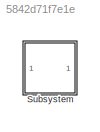
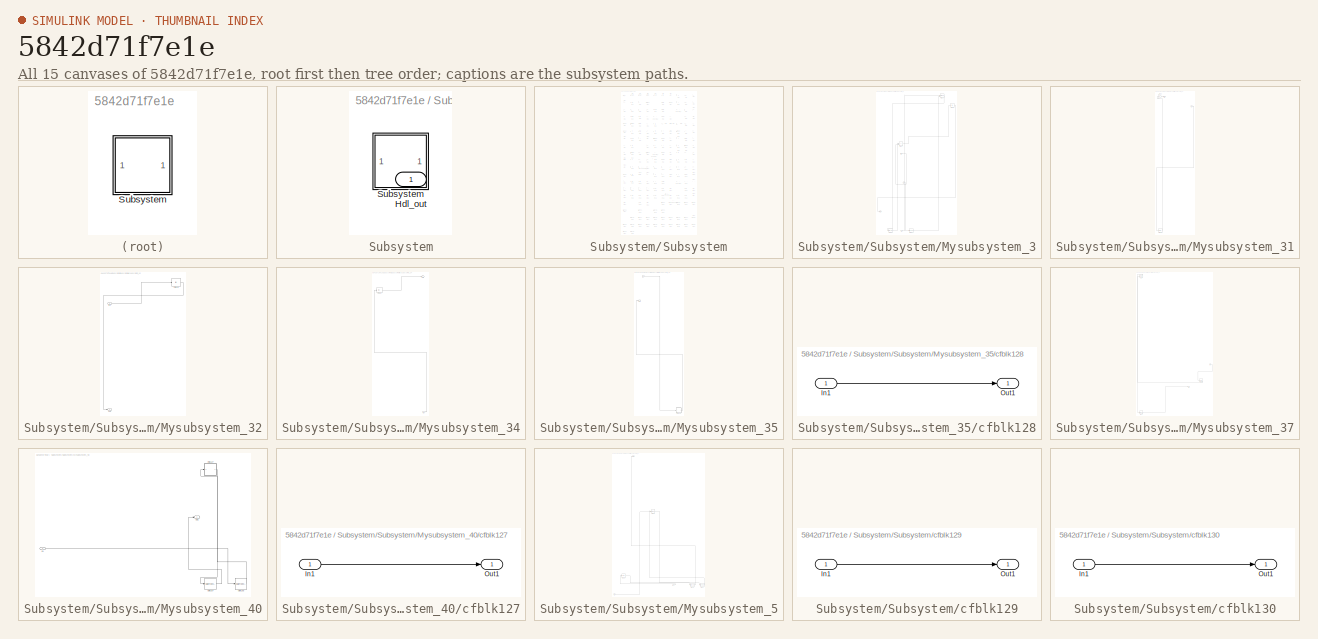
[diagram: thumbnail index - all 15 canvases of the model, root first then tree order]
MODEL slx_5842d71f7e1e
KIND model
CONFIG AbsTol = auto
CONFIG EnableMultiTasking = off
CONFIG FixedStep = auto
CONFIG MaxStep = auto
CONFIG MinStep = auto
CONFIG RelTol = 1e-3
CONFIG SampleTimeConstraint = Unconstrained
CONFIG SolverName = VariableStepAuto
CONFIG StartTime = 0.0
CONFIG StopTime = 10.0
BLOCK [SubSystem] Subsystem
BLOCK [Outport] Subsystem/Hdl_out
  OutDataTypeStr = uint8
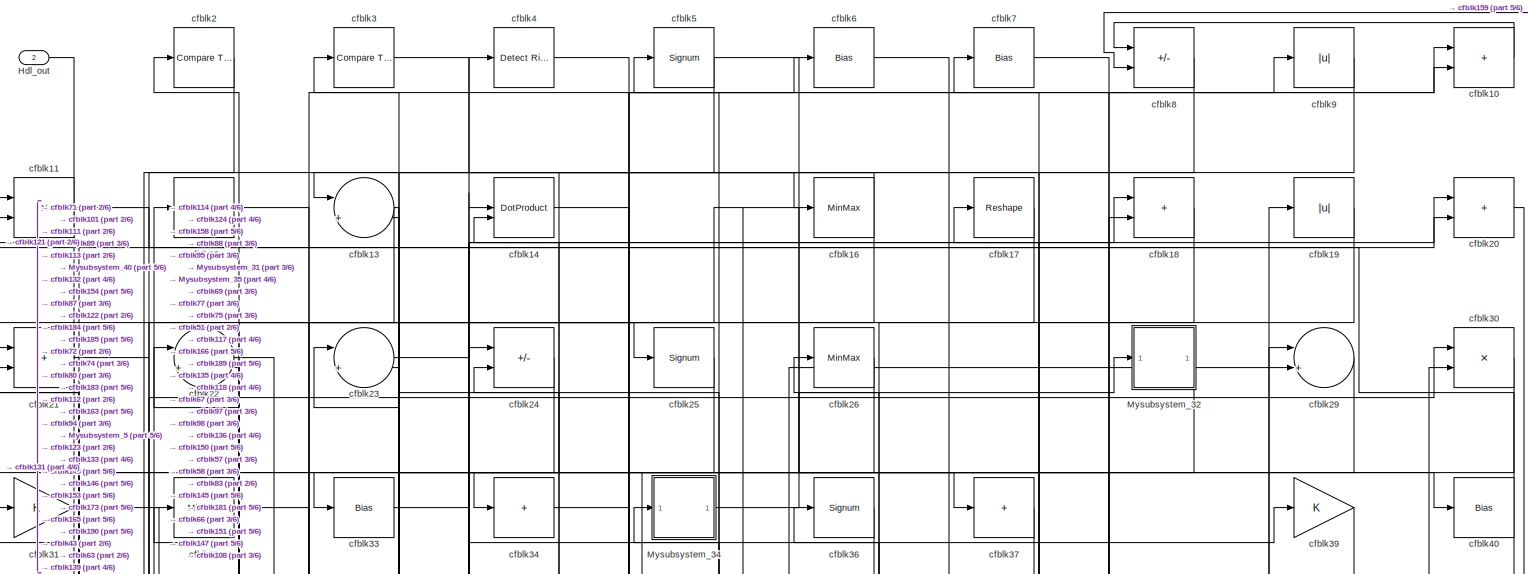
[diagram: Subsystem/Subsystem - part 1/6, full width, top band]
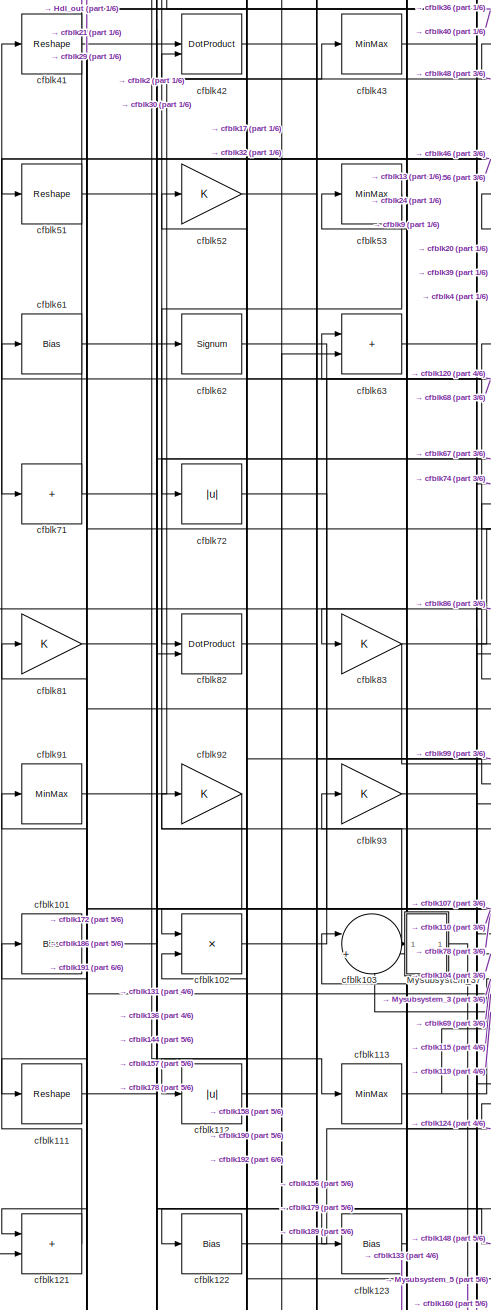
[diagram: Subsystem/Subsystem - part 2/6, middle left region]
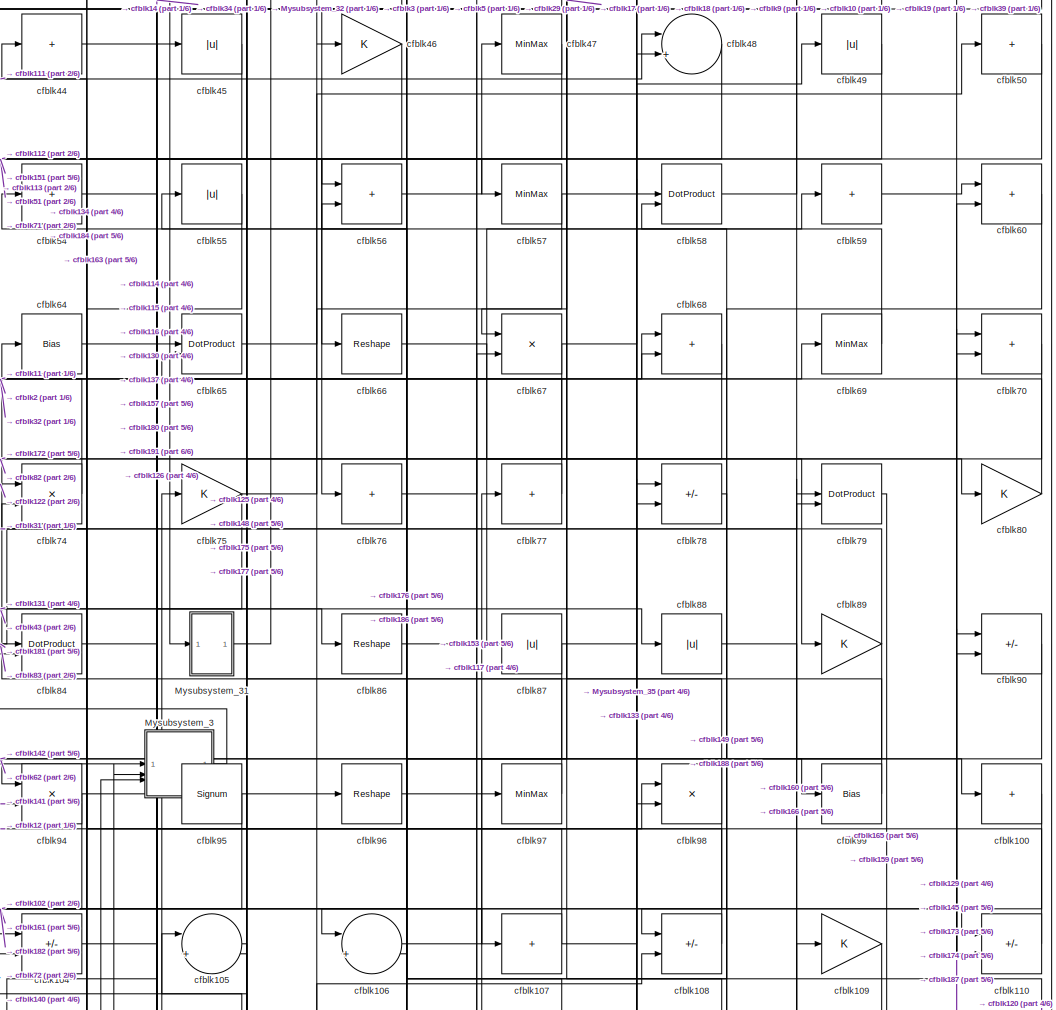
[diagram: Subsystem/Subsystem - part 3/6, central region]
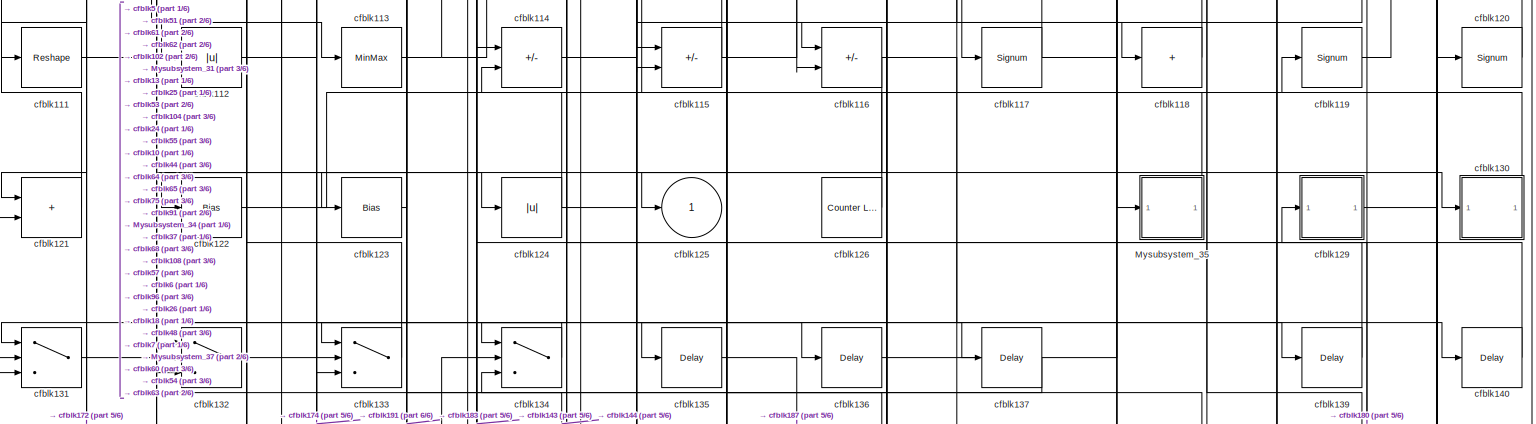
[diagram: Subsystem/Subsystem - part 4/6, full width, middle band]
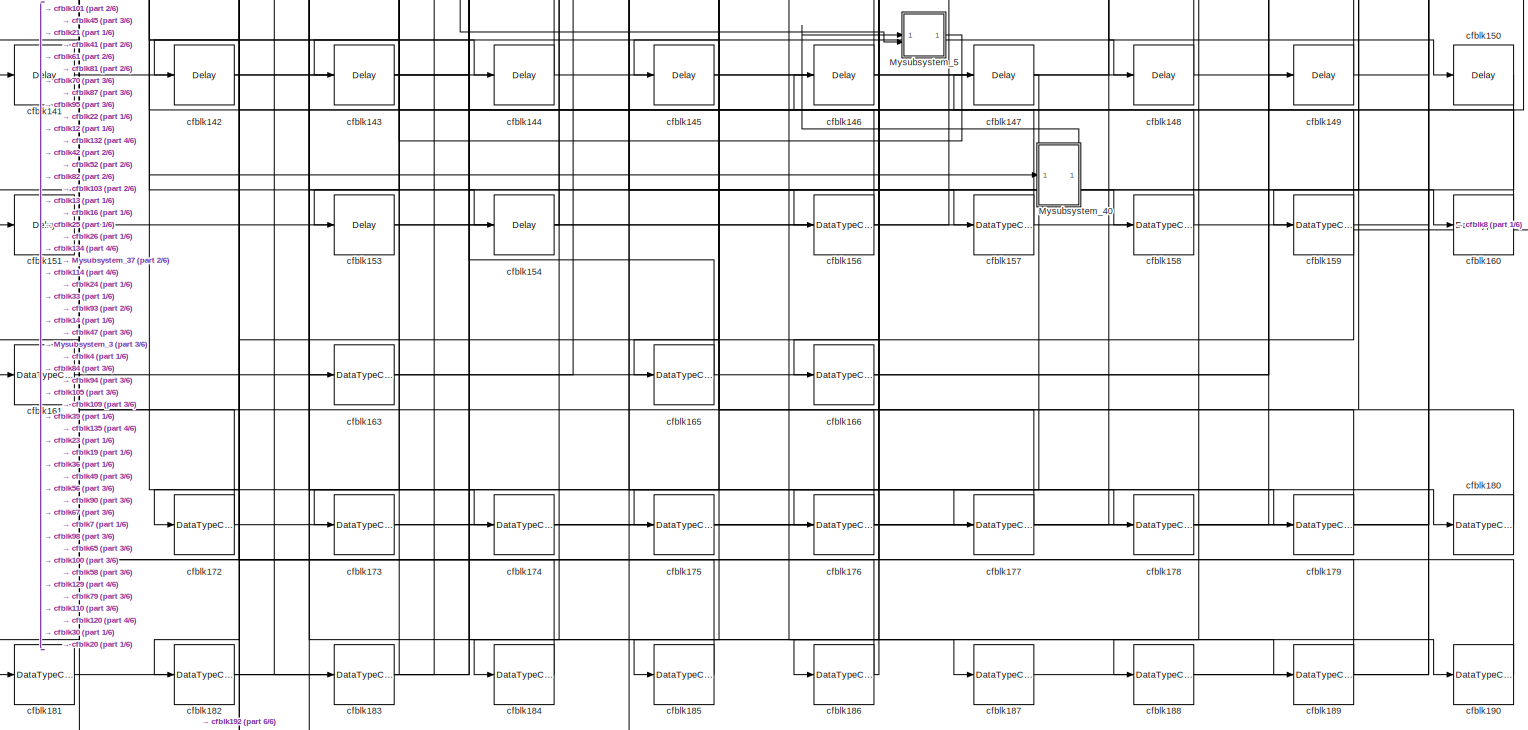
[diagram: Subsystem/Subsystem - part 5/6, full width, bottom band]
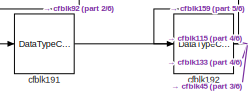
[diagram: Subsystem/Subsystem - part 6/6, bottom left region]
BLOCK [SubSystem] Subsystem/Subsystem
BLOCK [Outport] Subsystem/Subsystem/Hdl_out
  OutDataTypeStr = uint8
  Port = 2
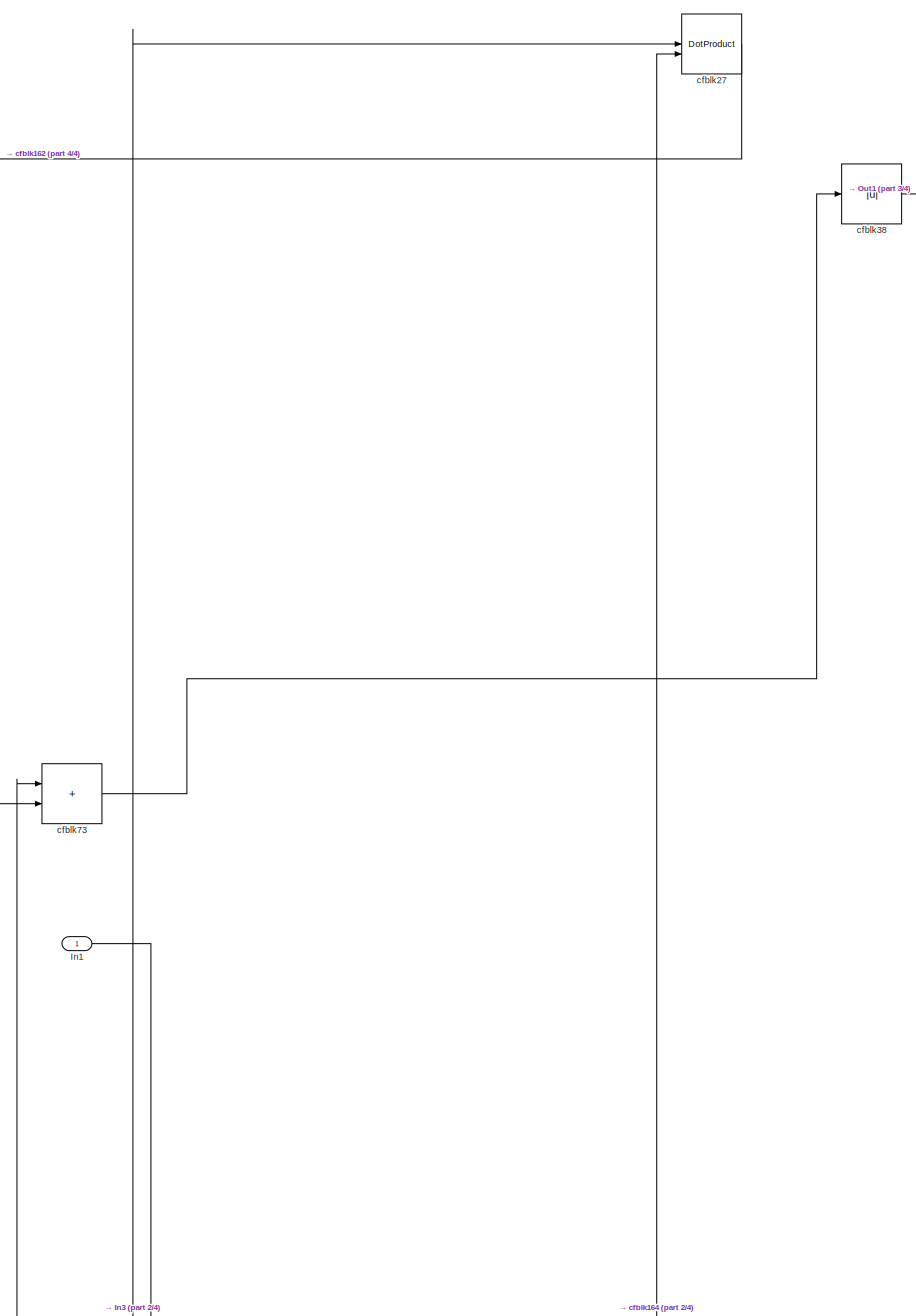
[diagram: Subsystem/Subsystem/Mysubsystem_3 - part 1/4, full width, top band]
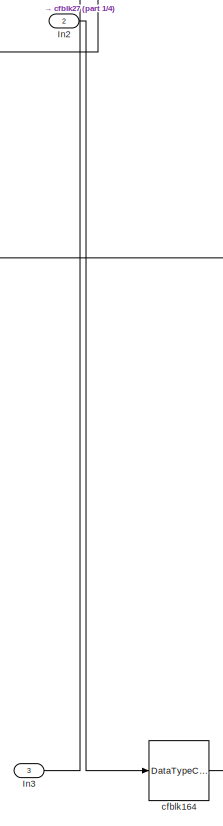
[diagram: Subsystem/Subsystem/Mysubsystem_3 - part 2/4, bottom center region]
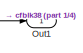
[diagram: Subsystem/Subsystem/Mysubsystem_3 - part 3/4, bottom left region]
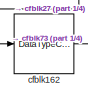
[diagram: Subsystem/Subsystem/Mysubsystem_3 - part 4/4, bottom left region]
BLOCK [SubSystem] Subsystem/Subsystem/Mysubsystem_3
  RTWFcnName = Mysubsystem_3
  RTWFcnNameOpts = User specified
  RTWFileNameOpts = Use function name
  RTWSystemCode = Reusable function
  TreatAsAtomicUnit = on
BLOCK [Inport] Subsystem/Subsystem/Mysubsystem_3/In1
BLOCK [Inport] Subsystem/Subsystem/Mysubsystem_3/In2
  Port = 2
BLOCK [Inport] Subsystem/Subsystem/Mysubsystem_3/In3
  Port = 3
BLOCK [Outport] Subsystem/Subsystem/Mysubsystem_3/Out1
BLOCK [DataTypeConversion] Subsystem/Subsystem/Mysubsystem_3/cfblk162
  OutDataTypeStr = uint8
  RndMeth = Floor
  SaturateOnIntegerOverflow = off
BLOCK [DataTypeConversion] Subsystem/Subsystem/Mysubsystem_3/cfblk164
  OutDataTypeStr = uint8
  RndMeth = Floor
  SaturateOnIntegerOverflow = off
BLOCK [DotProduct] Subsystem/Subsystem/Mysubsystem_3/cfblk27
  OutDataTypeStr = Inherit: Inherit via internal rule
BLOCK [Abs] Subsystem/Subsystem/Mysubsystem_3/cfblk38
  SaturateOnIntegerOverflow = off
BLOCK [Sum] Subsystem/Subsystem/Mysubsystem_3/cfblk73
  IconShape = rectangular
BLOCK [SubSystem] Subsystem/Subsystem/Mysubsystem_31
  RTWFcnName = Mysubsystem_31
  RTWFcnNameOpts = User specified
  RTWFileNameOpts = Use function name
  RTWSystemCode = Reusable function
  TreatAsAtomicUnit = on
BLOCK [Inport] Subsystem/Subsystem/Mysubsystem_31/In1
BLOCK [Outport] Subsystem/Subsystem/Mysubsystem_31/Out1
BLOCK [Gain] Subsystem/Subsystem/Mysubsystem_31/cfblk15
BLOCK [Delay] Subsystem/Subsystem/Mysubsystem_31/cfblk155
  InputPortMap = u0
  SampleTime = 1
BLOCK [SubSystem] Subsystem/Subsystem/Mysubsystem_32
  RTWFcnName = Mysubsystem_32
  RTWFcnNameOpts = User specified
  RTWFileNameOpts = Use function name
  RTWSystemCode = Reusable function
  TreatAsAtomicUnit = on
BLOCK [Inport] Subsystem/Subsystem/Mysubsystem_32/In1
BLOCK [Outport] Subsystem/Subsystem/Mysubsystem_32/Out1
BLOCK [Abs] Subsystem/Subsystem/Mysubsystem_32/cfblk28
  SaturateOnIntegerOverflow = off
BLOCK [SubSystem] Subsystem/Subsystem/Mysubsystem_34
  RTWFcnName = Mysubsystem_34
  RTWFcnNameOpts = User specified
  RTWFileNameOpts = Use function name
  RTWSystemCode = Reusable function
  TreatAsAtomicUnit = on
BLOCK [Inport] Subsystem/Subsystem/Mysubsystem_34/In1
BLOCK [Outport] Subsystem/Subsystem/Mysubsystem_34/Out1
BLOCK [Abs] Subsystem/Subsystem/Mysubsystem_34/cfblk35
  SaturateOnIntegerOverflow = off
BLOCK [SubSystem] Subsystem/Subsystem/Mysubsystem_35
  RTWFcnName = Mysubsystem_35
  RTWFcnNameOpts = User specified
  RTWFileNameOpts = Use function name
  RTWSystemCode = Reusable function
  TreatAsAtomicUnit = on
BLOCK [Inport] Subsystem/Subsystem/Mysubsystem_35/In1
BLOCK [Outport] Subsystem/Subsystem/Mysubsystem_35/Out1
BLOCK [SubSystem] Subsystem/Subsystem/Mysubsystem_35/cfblk128
  LibrarySourceBlock = hdlsllib/Ports &\nSubsystems/Subsystem
BLOCK [Inport] Subsystem/Subsystem/Mysubsystem_35/cfblk128/In1
BLOCK [Outport] Subsystem/Subsystem/Mysubsystem_35/cfblk128/Out1
BLOCK [SubSystem] Subsystem/Subsystem/Mysubsystem_37
  RTWFcnName = Mysubsystem_37
  RTWFcnNameOpts = User specified
  RTWFileNameOpts = Use function name
  RTWSystemCode = Reusable function
  TreatAsAtomicUnit = on
BLOCK [Inport] Subsystem/Subsystem/Mysubsystem_37/In1
BLOCK [Outport] Subsystem/Subsystem/Mysubsystem_37/Out1
BLOCK [Reference] Subsystem/Subsystem/Mysubsystem_37/cfblk1  REF=hdlsllib/Logic and Bit
Operations/Compare
To Zero
  SourceBlock = hdlsllib/Logic and Bit\nOperations/Compare\nTo Zero
  SourceType = Compare To Zero
BLOCK [Delay] Subsystem/Subsystem/Mysubsystem_37/cfblk138
  InputPortMap = u0
  SampleTime = 1
BLOCK [DataTypeConversion] Subsystem/Subsystem/Mysubsystem_37/cfblk171
  OutDataTypeStr = uint8
  RndMeth = Floor
  SaturateOnIntegerOverflow = off
BLOCK [SubSystem] Subsystem/Subsystem/Mysubsystem_40
  RTWFcnName = Mysubsystem_40
  RTWFcnNameOpts = User specified
  RTWFileNameOpts = Use function name
  RTWSystemCode = Reusable function
  TreatAsAtomicUnit = on
BLOCK [Inport] Subsystem/Subsystem/Mysubsystem_40/In1
BLOCK [Outport] Subsystem/Subsystem/Mysubsystem_40/Out1
BLOCK [SubSystem] Subsystem/Subsystem/Mysubsystem_40/cfblk127
  LibrarySourceBlock = hdlsllib/Ports &\nSubsystems/Subsystem
BLOCK [Inport] Subsystem/Subsystem/Mysubsystem_40/cfblk127/In1
BLOCK [Outport] Subsystem/Subsystem/Mysubsystem_40/cfblk127/Out1
BLOCK [DataTypeConversion] Subsystem/Subsystem/Mysubsystem_40/cfblk167
  OutDataTypeStr = uint8
  RndMeth = Floor
  SaturateOnIntegerOverflow = off
BLOCK [DataTypeConversion] Subsystem/Subsystem/Mysubsystem_40/cfblk168
  OutDataTypeStr = uint8
  RndMeth = Floor
  SaturateOnIntegerOverflow = off
BLOCK [SubSystem] Subsystem/Subsystem/Mysubsystem_5
  RTWFcnName = Mysubsystem_5
  RTWFcnNameOpts = User specified
  RTWFileNameOpts = Use function name
  RTWSystemCode = Reusable function
  TreatAsAtomicUnit = on
BLOCK [Inport] Subsystem/Subsystem/Mysubsystem_5/In1
BLOCK [Inport] Subsystem/Subsystem/Mysubsystem_5/In2
  Port = 2
BLOCK [Outport] Subsystem/Subsystem/Mysubsystem_5/Out1
BLOCK [Delay] Subsystem/Subsystem/Mysubsystem_5/cfblk152
  InputPortMap = u0
  SampleTime = 1
BLOCK [DataTypeConversion] Subsystem/Subsystem/Mysubsystem_5/cfblk169
  OutDataTypeStr = uint8
  RndMeth = Floor
  SaturateOnIntegerOverflow = off
BLOCK [DataTypeConversion] Subsystem/Subsystem/Mysubsystem_5/cfblk170
  OutDataTypeStr = uint8
  RndMeth = Floor
  SaturateOnIntegerOverflow = off
BLOCK [DotProduct] Subsystem/Subsystem/Mysubsystem_5/cfblk85
  OutDataTypeStr = Inherit: Inherit via internal rule
BLOCK [Sum] Subsystem/Subsystem/cfblk10
  IconShape = rectangular
  OutDataTypeStr = uint8
BLOCK [Sum] Subsystem/Subsystem/cfblk100
  IconShape = rectangular
  Inputs = +
  OutDataTypeStr = uint8
BLOCK [Bias] Subsystem/Subsystem/cfblk101
  Bias = 0.0
  SaturateOnIntegerOverflow = off
BLOCK [Product] Subsystem/Subsystem/cfblk102
  Inputs = */
  OutDataTypeStr = uint8
  RndMeth = Zero
  SaturateOnIntegerOverflow = on
BLOCK [Sum] Subsystem/Subsystem/cfblk103
  Inputs = |++
  OutDataTypeStr = uint8
BLOCK [Sum] Subsystem/Subsystem/cfblk104
  IconShape = rectangular
  Inputs = +-
  OutDataTypeStr = uint8
BLOCK [Sum] Subsystem/Subsystem/cfblk105
  Inputs = |++
  OutDataTypeStr = uint8
BLOCK [Sum] Subsystem/Subsystem/cfblk106
  Inputs = |++
  OutDataTypeStr = uint8
BLOCK [Sum] Subsystem/Subsystem/cfblk107
  IconShape = rectangular
  Inputs = +
  OutDataTypeStr = uint8
BLOCK [Sum] Subsystem/Subsystem/cfblk108
  IconShape = rectangular
  Inputs = +-
  OutDataTypeStr = uint8
BLOCK [Gain] Subsystem/Subsystem/cfblk109
  OutDataTypeStr = uint8
BLOCK [Product] Subsystem/Subsystem/cfblk11
  Inputs = */
  OutDataTypeStr = uint8
  RndMeth = Zero
  SaturateOnIntegerOverflow = on
BLOCK [Sum] Subsystem/Subsystem/cfblk110
  IconShape = rectangular
  Inputs = +-
  OutDataTypeStr = uint8
BLOCK [Reshape] Subsystem/Subsystem/cfblk111
BLOCK [Abs] Subsystem/Subsystem/cfblk112
  OutDataTypeStr = uint8
  SaturateOnIntegerOverflow = off
BLOCK [MinMax] Subsystem/Subsystem/cfblk113
  OutDataTypeStr = uint8
BLOCK [Sum] Subsystem/Subsystem/cfblk114
  IconShape = rectangular
  Inputs = +-
  OutDataTypeStr = uint8
BLOCK [Sum] Subsystem/Subsystem/cfblk115
  IconShape = rectangular
  Inputs = +-
  OutDataTypeStr = uint8
BLOCK [Sum] Subsystem/Subsystem/cfblk116
  IconShape = rectangular
  Inputs = +-
  OutDataTypeStr = uint8
BLOCK [Signum] Subsystem/Subsystem/cfblk117
BLOCK [Sum] Subsystem/Subsystem/cfblk118
  IconShape = rectangular
  Inputs = +
  OutDataTypeStr = uint8
BLOCK [Signum] Subsystem/Subsystem/cfblk119
BLOCK [Bias] Subsystem/Subsystem/cfblk12
  Bias = 0.0
  SaturateOnIntegerOverflow = off
BLOCK [Signum] Subsystem/Subsystem/cfblk120
BLOCK [Sum] Subsystem/Subsystem/cfblk121
  IconShape = rectangular
  OutDataTypeStr = uint8
BLOCK [Bias] Subsystem/Subsystem/cfblk122
  Bias = 0.0
  SaturateOnIntegerOverflow = off
BLOCK [Bias] Subsystem/Subsystem/cfblk123
  Bias = 0.0
  SaturateOnIntegerOverflow = off
BLOCK [Abs] Subsystem/Subsystem/cfblk124
  OutDataTypeStr = uint8
  SaturateOnIntegerOverflow = off
BLOCK [Outport] Subsystem/Subsystem/cfblk125
  OutDataTypeStr = uint8
  VectorParamsAs1DForOutWhenUnconnected = off
BLOCK [Reference] Subsystem/Subsystem/cfblk126  REF=hdlsllib/Sources/Counter
Limited
  SourceBlock = hdlsllib/Sources/Counter\nLimited
  SourceType = Counter Limited
BLOCK [SubSystem] Subsystem/Subsystem/cfblk129
  LibrarySourceBlock = hdlsllib/Ports &\nSubsystems/Subsystem
BLOCK [Inport] Subsystem/Subsystem/cfblk129/In1
BLOCK [Outport] Subsystem/Subsystem/cfblk129/Out1
BLOCK [Sum] Subsystem/Subsystem/cfblk13
  Inputs = |++
  OutDataTypeStr = uint8
BLOCK [SubSystem] Subsystem/Subsystem/cfblk130
  LibrarySourceBlock = hdlsllib/Ports &\nSubsystems/Subsystem
BLOCK [Inport] Subsystem/Subsystem/cfblk130/In1
BLOCK [Outport] Subsystem/Subsystem/cfblk130/Out1
BLOCK [Switch] Subsystem/Subsystem/cfblk131
  InputSameDT = off
  OutDataTypeStr = uint8
  SaturateOnIntegerOverflow = off
BLOCK [Switch] Subsystem/Subsystem/cfblk132
  InputSameDT = off
  OutDataTypeStr = uint8
  SaturateOnIntegerOverflow = off
BLOCK [Switch] Subsystem/Subsystem/cfblk133
  InputSameDT = off
  OutDataTypeStr = uint8
  SaturateOnIntegerOverflow = off
BLOCK [Switch] Subsystem/Subsystem/cfblk134
  InputSameDT = off
  OutDataTypeStr = uint8
  SaturateOnIntegerOverflow = off
BLOCK [Delay] Subsystem/Subsystem/cfblk135
  InputPortMap = u0
  SampleTime = 1
BLOCK [Delay] Subsystem/Subsystem/cfblk136
  InputPortMap = u0
  SampleTime = 1
BLOCK [Delay] Subsystem/Subsystem/cfblk137
  InputPortMap = u0
  SampleTime = 1
BLOCK [Delay] Subsystem/Subsystem/cfblk139
  InputPortMap = u0
  SampleTime = 1
BLOCK [DotProduct] Subsystem/Subsystem/cfblk14
  OutDataTypeStr = uint8
BLOCK [Delay] Subsystem/Subsystem/cfblk140
  InputPortMap = u0
  SampleTime = 1
BLOCK [Delay] Subsystem/Subsystem/cfblk141
  InputPortMap = u0
  SampleTime = 1
BLOCK [Delay] Subsystem/Subsystem/cfblk142
  InputPortMap = u0
  SampleTime = 1
BLOCK [Delay] Subsystem/Subsystem/cfblk143
  InputPortMap = u0
  SampleTime = 1
BLOCK [Delay] Subsystem/Subsystem/cfblk144
  InputPortMap = u0
  SampleTime = 1
BLOCK [Delay] Subsystem/Subsystem/cfblk145
  InputPortMap = u0
  SampleTime = 1
BLOCK [Delay] Subsystem/Subsystem/cfblk146
  InputPortMap = u0
  SampleTime = 1
BLOCK [Delay] Subsystem/Subsystem/cfblk147
  InputPortMap = u0
  SampleTime = 1
BLOCK [Delay] Subsystem/Subsystem/cfblk148
  InputPortMap = u0
  SampleTime = 1
BLOCK [Delay] Subsystem/Subsystem/cfblk149
  InputPortMap = u0
  SampleTime = 1
BLOCK [Delay] Subsystem/Subsystem/cfblk150
  InputPortMap = u0
  SampleTime = 1
BLOCK [Delay] Subsystem/Subsystem/cfblk151
  InputPortMap = u0
  SampleTime = 1
BLOCK [Delay] Subsystem/Subsystem/cfblk153
  InputPortMap = u0
  SampleTime = 1
BLOCK [Delay] Subsystem/Subsystem/cfblk154
  InputPortMap = u0
  SampleTime = 1
BLOCK [DataTypeConversion] Subsystem/Subsystem/cfblk156
  OutDataTypeStr = uint8
  RndMeth = Floor
  SaturateOnIntegerOverflow = off
BLOCK [DataTypeConversion] Subsystem/Subsystem/cfblk157
  OutDataTypeStr = uint8
  RndMeth = Floor
  SaturateOnIntegerOverflow = off
BLOCK [DataTypeConversion] Subsystem/Subsystem/cfblk158
  OutDataTypeStr = uint8
  RndMeth = Floor
  SaturateOnIntegerOverflow = off
BLOCK [DataTypeConversion] Subsystem/Subsystem/cfblk159
  OutDataTypeStr = uint8
  RndMeth = Floor
  SaturateOnIntegerOverflow = off
BLOCK [MinMax] Subsystem/Subsystem/cfblk16
  OutDataTypeStr = uint8
BLOCK [DataTypeConversion] Subsystem/Subsystem/cfblk160
  OutDataTypeStr = uint8
  RndMeth = Floor
  SaturateOnIntegerOverflow = off
BLOCK [DataTypeConversion] Subsystem/Subsystem/cfblk161
  OutDataTypeStr = uint8
  RndMeth = Floor
  SaturateOnIntegerOverflow = off
BLOCK [DataTypeConversion] Subsystem/Subsystem/cfblk163
  OutDataTypeStr = uint8
  RndMeth = Floor
  SaturateOnIntegerOverflow = off
BLOCK [DataTypeConversion] Subsystem/Subsystem/cfblk165
  OutDataTypeStr = uint8
  RndMeth = Floor
  SaturateOnIntegerOverflow = off
BLOCK [DataTypeConversion] Subsystem/Subsystem/cfblk166
  OutDataTypeStr = uint8
  RndMeth = Floor
  SaturateOnIntegerOverflow = off
BLOCK [Reshape] Subsystem/Subsystem/cfblk17
BLOCK [DataTypeConversion] Subsystem/Subsystem/cfblk172
  OutDataTypeStr = uint8
  RndMeth = Floor
  SaturateOnIntegerOverflow = off
BLOCK [DataTypeConversion] Subsystem/Subsystem/cfblk173
  OutDataTypeStr = uint8
  RndMeth = Floor
  SaturateOnIntegerOverflow = off
BLOCK [DataTypeConversion] Subsystem/Subsystem/cfblk174
  OutDataTypeStr = uint8
  RndMeth = Floor
  SaturateOnIntegerOverflow = off
BLOCK [DataTypeConversion] Subsystem/Subsystem/cfblk175
  OutDataTypeStr = uint8
  RndMeth = Floor
  SaturateOnIntegerOverflow = off
BLOCK [DataTypeConversion] Subsystem/Subsystem/cfblk176
  OutDataTypeStr = uint8
  RndMeth = Floor
  SaturateOnIntegerOverflow = off
BLOCK [DataTypeConversion] Subsystem/Subsystem/cfblk177
  OutDataTypeStr = uint8
  RndMeth = Floor
  SaturateOnIntegerOverflow = off
BLOCK [DataTypeConversion] Subsystem/Subsystem/cfblk178
  OutDataTypeStr = uint8
  RndMeth = Floor
  SaturateOnIntegerOverflow = off
BLOCK [DataTypeConversion] Subsystem/Subsystem/cfblk179
  OutDataTypeStr = uint8
  RndMeth = Floor
  SaturateOnIntegerOverflow = off
BLOCK [Sum] Subsystem/Subsystem/cfblk18
  IconShape = rectangular
  OutDataTypeStr = uint8
BLOCK [DataTypeConversion] Subsystem/Subsystem/cfblk180
  OutDataTypeStr = uint8
  RndMeth = Floor
  SaturateOnIntegerOverflow = off
BLOCK [DataTypeConversion] Subsystem/Subsystem/cfblk181
  OutDataTypeStr = uint8
  RndMeth = Floor
  SaturateOnIntegerOverflow = off
BLOCK [DataTypeConversion] Subsystem/Subsystem/cfblk182
  OutDataTypeStr = uint8
  RndMeth = Floor
  SaturateOnIntegerOverflow = off
BLOCK [DataTypeConversion] Subsystem/Subsystem/cfblk183
  OutDataTypeStr = uint8
  RndMeth = Floor
  SaturateOnIntegerOverflow = off
BLOCK [DataTypeConversion] Subsystem/Subsystem/cfblk184
  OutDataTypeStr = uint8
  RndMeth = Floor
  SaturateOnIntegerOverflow = off
BLOCK [DataTypeConversion] Subsystem/Subsystem/cfblk185
  OutDataTypeStr = uint8
  RndMeth = Floor
  SaturateOnIntegerOverflow = off
BLOCK [DataTypeConversion] Subsystem/Subsystem/cfblk186
  OutDataTypeStr = uint8
  RndMeth = Floor
  SaturateOnIntegerOverflow = off
BLOCK [DataTypeConversion] Subsystem/Subsystem/cfblk187
  OutDataTypeStr = uint8
  RndMeth = Floor
  SaturateOnIntegerOverflow = off
BLOCK [DataTypeConversion] Subsystem/Subsystem/cfblk188
  OutDataTypeStr = uint8
  RndMeth = Floor
  SaturateOnIntegerOverflow = off
BLOCK [DataTypeConversion] Subsystem/Subsystem/cfblk189
  OutDataTypeStr = uint8
  RndMeth = Floor
  SaturateOnIntegerOverflow = off
BLOCK [Abs] Subsystem/Subsystem/cfblk19
  OutDataTypeStr = uint8
  SaturateOnIntegerOverflow = off
BLOCK [DataTypeConversion] Subsystem/Subsystem/cfblk190
  OutDataTypeStr = uint8
  RndMeth = Floor
  SaturateOnIntegerOverflow = off
BLOCK [DataTypeConversion] Subsystem/Subsystem/cfblk191
  OutDataTypeStr = uint8
  RndMeth = Floor
  SaturateOnIntegerOverflow = off
BLOCK [DataTypeConversion] Subsystem/Subsystem/cfblk192
  OutDataTypeStr = uint8
  RndMeth = Floor
  SaturateOnIntegerOverflow = off
BLOCK [Reference] Subsystem/Subsystem/cfblk2  REF=hdlsllib/Logic and Bit
Operations/Compare
To Zero
  SourceBlock = hdlsllib/Logic and Bit\nOperations/Compare\nTo Zero
  SourceType = Compare To Zero
BLOCK [Sum] Subsystem/Subsystem/cfblk20
  IconShape = rectangular
  OutDataTypeStr = uint8
BLOCK [Sum] Subsystem/Subsystem/cfblk21
  IconShape = rectangular
  OutDataTypeStr = uint8
BLOCK [Sum] Subsystem/Subsystem/cfblk22
  Inputs = |++
  OutDataTypeStr = uint8
BLOCK [Sum] Subsystem/Subsystem/cfblk23
  Inputs = |++
  OutDataTypeStr = uint8
BLOCK [Sum] Subsystem/Subsystem/cfblk24
  IconShape = rectangular
  Inputs = +-
  OutDataTypeStr = uint8
BLOCK [Signum] Subsystem/Subsystem/cfblk25
BLOCK [MinMax] Subsystem/Subsystem/cfblk26
  OutDataTypeStr = uint8
BLOCK [Sum] Subsystem/Subsystem/cfblk29
  Inputs = |++
  OutDataTypeStr = uint8
BLOCK [Reference] Subsystem/Subsystem/cfblk3  REF=hdlsllib/Logic and Bit
Operations/Compare
To Zero
  SourceBlock = hdlsllib/Logic and Bit\nOperations/Compare\nTo Zero
  SourceType = Compare To Zero
BLOCK [Product] Subsystem/Subsystem/cfblk30
  Inputs = */
  OutDataTypeStr = uint8
  RndMeth = Zero
  SaturateOnIntegerOverflow = on
BLOCK [Gain] Subsystem/Subsystem/cfblk31
  OutDataTypeStr = uint8
BLOCK [MinMax] Subsystem/Subsystem/cfblk32
  OutDataTypeStr = uint8
BLOCK [Bias] Subsystem/Subsystem/cfblk33
  Bias = 0.0
  SaturateOnIntegerOverflow = off
BLOCK [Sum] Subsystem/Subsystem/cfblk34
  IconShape = rectangular
  Inputs = +
  OutDataTypeStr = uint8
BLOCK [Signum] Subsystem/Subsystem/cfblk36
BLOCK [Sum] Subsystem/Subsystem/cfblk37
  IconShape = rectangular
  Inputs = +
  OutDataTypeStr = uint8
BLOCK [Gain] Subsystem/Subsystem/cfblk39
  OutDataTypeStr = uint8
BLOCK [Reference] Subsystem/Subsystem/cfblk4  REF=hdlsllib/Logic and Bit
Operations/Detect Rise
Positive
  SourceBlock = hdlsllib/Logic and Bit\nOperations/Detect Rise\nPositive
  SourceType = Detect Rise Positive
BLOCK [Bias] Subsystem/Subsystem/cfblk40
  Bias = 0.0
  SaturateOnIntegerOverflow = off
BLOCK [Reshape] Subsystem/Subsystem/cfblk41
BLOCK [DotProduct] Subsystem/Subsystem/cfblk42
  OutDataTypeStr = uint8
BLOCK [MinMax] Subsystem/Subsystem/cfblk43
  OutDataTypeStr = uint8
BLOCK [Sum] Subsystem/Subsystem/cfblk44
  IconShape = rectangular
  Inputs = +
  OutDataTypeStr = uint8
BLOCK [Abs] Subsystem/Subsystem/cfblk45
  OutDataTypeStr = uint8
  SaturateOnIntegerOverflow = off
BLOCK [Gain] Subsystem/Subsystem/cfblk46
  OutDataTypeStr = uint8
BLOCK [MinMax] Subsystem/Subsystem/cfblk47
  OutDataTypeStr = uint8
BLOCK [Sum] Subsystem/Subsystem/cfblk48
  Inputs = |++
  OutDataTypeStr = uint8
BLOCK [Abs] Subsystem/Subsystem/cfblk49
  OutDataTypeStr = uint8
  SaturateOnIntegerOverflow = off
BLOCK [Signum] Subsystem/Subsystem/cfblk5
BLOCK [Sum] Subsystem/Subsystem/cfblk50
  IconShape = rectangular
  Inputs = +
  OutDataTypeStr = uint8
BLOCK [Reshape] Subsystem/Subsystem/cfblk51
BLOCK [Gain] Subsystem/Subsystem/cfblk52
  OutDataTypeStr = uint8
BLOCK [MinMax] Subsystem/Subsystem/cfblk53
  OutDataTypeStr = uint8
BLOCK [Sum] Subsystem/Subsystem/cfblk54
  IconShape = rectangular
  Inputs = +
  OutDataTypeStr = uint8
BLOCK [Abs] Subsystem/Subsystem/cfblk55
  OutDataTypeStr = uint8
  SaturateOnIntegerOverflow = off
BLOCK [Sum] Subsystem/Subsystem/cfblk56
  IconShape = rectangular
  OutDataTypeStr = uint8
BLOCK [MinMax] Subsystem/Subsystem/cfblk57
  OutDataTypeStr = uint8
BLOCK [DotProduct] Subsystem/Subsystem/cfblk58
  OutDataTypeStr = uint8
BLOCK [Sum] Subsystem/Subsystem/cfblk59
  IconShape = rectangular
  Inputs = +
  OutDataTypeStr = uint8
BLOCK [Bias] Subsystem/Subsystem/cfblk6
  Bias = 0.0
  SaturateOnIntegerOverflow = off
BLOCK [Sum] Subsystem/Subsystem/cfblk60
  IconShape = rectangular
  OutDataTypeStr = uint8
BLOCK [Bias] Subsystem/Subsystem/cfblk61
  Bias = 0.0
  SaturateOnIntegerOverflow = off
BLOCK [Signum] Subsystem/Subsystem/cfblk62
BLOCK [Sum] Subsystem/Subsystem/cfblk63
  IconShape = rectangular
  OutDataTypeStr = uint8
BLOCK [Bias] Subsystem/Subsystem/cfblk64
  Bias = 0.0
  SaturateOnIntegerOverflow = off
BLOCK [DotProduct] Subsystem/Subsystem/cfblk65
  OutDataTypeStr = uint8
BLOCK [Reshape] Subsystem/Subsystem/cfblk66
BLOCK [Product] Subsystem/Subsystem/cfblk67
  Inputs = */
  OutDataTypeStr = uint8
  RndMeth = Zero
  SaturateOnIntegerOverflow = on
BLOCK [Sum] Subsystem/Subsystem/cfblk68
  IconShape = rectangular
  OutDataTypeStr = uint8
BLOCK [MinMax] Subsystem/Subsystem/cfblk69
  OutDataTypeStr = uint8
BLOCK [Bias] Subsystem/Subsystem/cfblk7
  Bias = 0.0
  SaturateOnIntegerOverflow = off
BLOCK [Sum] Subsystem/Subsystem/cfblk70
  IconShape = rectangular
  OutDataTypeStr = uint8
BLOCK [Sum] Subsystem/Subsystem/cfblk71
  IconShape = rectangular
  Inputs = +
  OutDataTypeStr = uint8
BLOCK [Abs] Subsystem/Subsystem/cfblk72
  OutDataTypeStr = uint8
  SaturateOnIntegerOverflow = off
BLOCK [Product] Subsystem/Subsystem/cfblk74
  Inputs = */
  OutDataTypeStr = uint8
  RndMeth = Zero
  SaturateOnIntegerOverflow = on
BLOCK [Gain] Subsystem/Subsystem/cfblk75
  OutDataTypeStr = uint8
BLOCK [Sum] Subsystem/Subsystem/cfblk76
  IconShape = rectangular
  Inputs = +
  OutDataTypeStr = uint8
BLOCK [Sum] Subsystem/Subsystem/cfblk77
  IconShape = rectangular
  Inputs = +
  OutDataTypeStr = uint8
BLOCK [Sum] Subsystem/Subsystem/cfblk78
  IconShape = rectangular
  Inputs = +-
  OutDataTypeStr = uint8
BLOCK [DotProduct] Subsystem/Subsystem/cfblk79
  OutDataTypeStr = uint8
BLOCK [Sum] Subsystem/Subsystem/cfblk8
  IconShape = rectangular
  Inputs = +-
  OutDataTypeStr = uint8
BLOCK [Gain] Subsystem/Subsystem/cfblk80
  OutDataTypeStr = uint8
BLOCK [Gain] Subsystem/Subsystem/cfblk81
  OutDataTypeStr = uint8
BLOCK [DotProduct] Subsystem/Subsystem/cfblk82
  OutDataTypeStr = uint8
BLOCK [Gain] Subsystem/Subsystem/cfblk83
  OutDataTypeStr = uint8
BLOCK [DotProduct] Subsystem/Subsystem/cfblk84
  OutDataTypeStr = uint8
BLOCK [Reshape] Subsystem/Subsystem/cfblk86
BLOCK [Abs] Subsystem/Subsystem/cfblk87
  OutDataTypeStr = uint8
  SaturateOnIntegerOverflow = off
BLOCK [Abs] Subsystem/Subsystem/cfblk88
  OutDataTypeStr = uint8
  SaturateOnIntegerOverflow = off
BLOCK [Gain] Subsystem/Subsystem/cfblk89
  OutDataTypeStr = uint8
BLOCK [Abs] Subsystem/Subsystem/cfblk9
  OutDataTypeStr = uint8
  SaturateOnIntegerOverflow = off
BLOCK [Sum] Subsystem/Subsystem/cfblk90
  IconShape = rectangular
  Inputs = +-
  OutDataTypeStr = uint8
BLOCK [MinMax] Subsystem/Subsystem/cfblk91
  OutDataTypeStr = uint8
BLOCK [Gain] Subsystem/Subsystem/cfblk92
  OutDataTypeStr = uint8
BLOCK [Gain] Subsystem/Subsystem/cfblk93
  OutDataTypeStr = uint8
BLOCK [Product] Subsystem/Subsystem/cfblk94
  Inputs = */
  OutDataTypeStr = uint8
  RndMeth = Zero
  SaturateOnIntegerOverflow = on
BLOCK [Signum] Subsystem/Subsystem/cfblk95
BLOCK [Reshape] Subsystem/Subsystem/cfblk96
BLOCK [MinMax] Subsystem/Subsystem/cfblk97
  OutDataTypeStr = uint8
BLOCK [Product] Subsystem/Subsystem/cfblk98
  Inputs = */
  OutDataTypeStr = uint8
  RndMeth = Zero
  SaturateOnIntegerOverflow = on
BLOCK [Bias] Subsystem/Subsystem/cfblk99
  Bias = 0.0
  SaturateOnIntegerOverflow = off
LINE Subsystem/Subsystem/Mysubsystem_3/In1:1 -> Subsystem/Subsystem/Mysubsystem_3/cfblk73:2
LINE Subsystem/Subsystem/Mysubsystem_3/In2:1 -> Subsystem/Subsystem/Mysubsystem_3/cfblk164:1
LINE Subsystem/Subsystem/Mysubsystem_3/In3:1 -> Subsystem/Subsystem/Mysubsystem_3/cfblk27:1
LINE Subsystem/Subsystem/Mysubsystem_3/cfblk162:1 -> Subsystem/Subsystem/Mysubsystem_3/cfblk73:1
LINE Subsystem/Subsystem/Mysubsystem_3/cfblk164:1 -> Subsystem/Subsystem/Mysubsystem_3/cfblk27:2
LINE Subsystem/Subsystem/Mysubsystem_3/cfblk27:1 -> Subsystem/Subsystem/Mysubsystem_3/cfblk162:1
LINE Subsystem/Subsystem/Mysubsystem_3/cfblk38:1 -> Subsystem/Subsystem/Mysubsystem_3/Out1:1
LINE Subsystem/Subsystem/Mysubsystem_3/cfblk73:1 -> Subsystem/Subsystem/Mysubsystem_3/cfblk38:1
LINE Subsystem/Subsystem/Mysubsystem_31/In1:1 -> Subsystem/Subsystem/Mysubsystem_31/cfblk155:1
LINE Subsystem/Subsystem/Mysubsystem_31/cfblk155:1 -> Subsystem/Subsystem/Mysubsystem_31/cfblk15:1
LINE Subsystem/Subsystem/Mysubsystem_31/cfblk15:1 -> Subsystem/Subsystem/Mysubsystem_31/Out1:1
NET Subsystem/Subsystem/Mysubsystem_31:1 -> Subsystem/Subsystem/Mysubsystem_35:1, Subsystem/Subsystem/cfblk133:2
LINE Subsystem/Subsystem/Mysubsystem_32/In1:1 -> Subsystem/Subsystem/Mysubsystem_32/cfblk28:1
LINE Subsystem/Subsystem/Mysubsystem_32/cfblk28:1 -> Subsystem/Subsystem/Mysubsystem_32/Out1:1
LINE Subsystem/Subsystem/Mysubsystem_32:1 -> Subsystem/Subsystem/Mysubsystem_31:1
LINE Subsystem/Subsystem/Mysubsystem_34/In1:1 -> Subsystem/Subsystem/Mysubsystem_34/cfblk35:1
LINE Subsystem/Subsystem/Mysubsystem_34/cfblk35:1 -> Subsystem/Subsystem/Mysubsystem_34/Out1:1
LINE Subsystem/Subsystem/Mysubsystem_34:1 -> Subsystem/Subsystem/Mysubsystem_32:1
LINE Subsystem/Subsystem/Mysubsystem_35/In1:1 -> Subsystem/Subsystem/Mysubsystem_35/cfblk128:1
LINE Subsystem/Subsystem/Mysubsystem_35/cfblk128/In1:1 -> Subsystem/Subsystem/Mysubsystem_35/cfblk128/Out1:1
LINE Subsystem/Subsystem/Mysubsystem_35/cfblk128:1 -> Subsystem/Subsystem/Mysubsystem_35/Out1:1
LINE Subsystem/Subsystem/Mysubsystem_35:1 -> Subsystem/Subsystem/Mysubsystem_34:1
LINE Subsystem/Subsystem/Mysubsystem_37/In1:1 -> Subsystem/Subsystem/Mysubsystem_37/cfblk138:1
LINE Subsystem/Subsystem/Mysubsystem_37/cfblk138:1 -> Subsystem/Subsystem/Mysubsystem_37/cfblk1:1
LINE Subsystem/Subsystem/Mysubsystem_37/cfblk171:1 -> Subsystem/Subsystem/Mysubsystem_37/Out1:1
LINE Subsystem/Subsystem/Mysubsystem_37/cfblk1:1 -> Subsystem/Subsystem/Mysubsystem_37/cfblk171:1
LINE Subsystem/Subsystem/Mysubsystem_37:1 -> Subsystem/Subsystem/Mysubsystem_5:2
LINE Subsystem/Subsystem/Mysubsystem_3:1 -> Subsystem/Subsystem/cfblk141:1
LINE Subsystem/Subsystem/Mysubsystem_40/In1:1 -> Subsystem/Subsystem/Mysubsystem_40/cfblk168:1
LINE Subsystem/Subsystem/Mysubsystem_40/cfblk127/In1:1 -> Subsystem/Subsystem/Mysubsystem_40/cfblk127/Out1:1
LINE Subsystem/Subsystem/Mysubsystem_40/cfblk127:1 -> Subsystem/Subsystem/Mysubsystem_40/cfblk167:1
LINE Subsystem/Subsystem/Mysubsystem_40/cfblk167:1 -> Subsystem/Subsystem/Mysubsystem_40/Out1:1
LINE Subsystem/Subsystem/Mysubsystem_40/cfblk168:1 -> Subsystem/Subsystem/Mysubsystem_40/cfblk127:1
LINE Subsystem/Subsystem/Mysubsystem_40:1 -> Subsystem/Subsystem/Mysubsystem_5:1
LINE Subsystem/Subsystem/Mysubsystem_5/In1:1 -> Subsystem/Subsystem/Mysubsystem_5/cfblk152:1
LINE Subsystem/Subsystem/Mysubsystem_5/In2:1 -> Subsystem/Subsystem/Mysubsystem_5/cfblk85:2
LINE Subsystem/Subsystem/Mysubsystem_5/cfblk152:1 -> Subsystem/Subsystem/Mysubsystem_5/cfblk170:1
LINE Subsystem/Subsystem/Mysubsystem_5/cfblk169:1 -> Subsystem/Subsystem/Mysubsystem_5/Out1:1
LINE Subsystem/Subsystem/Mysubsystem_5/cfblk170:1 -> Subsystem/Subsystem/Mysubsystem_5/cfblk85:1
LINE Subsystem/Subsystem/Mysubsystem_5/cfblk85:1 -> Subsystem/Subsystem/Mysubsystem_5/cfblk169:1
LINE Subsystem/Subsystem/Mysubsystem_5:1 -> Subsystem/Subsystem/cfblk23:1
LINE Subsystem/Subsystem/cfblk100:1 -> Subsystem/Subsystem/cfblk188:1
NET Subsystem/Subsystem/cfblk101:1 -> Subsystem/Subsystem/cfblk21:1, Subsystem/Subsystem/cfblk30:1
LINE Subsystem/Subsystem/cfblk102:1 -> Subsystem/Subsystem/cfblk68:1
LINE Subsystem/Subsystem/cfblk103:1 -> Subsystem/Subsystem/cfblk93:1
LINE Subsystem/Subsystem/cfblk104:1 -> Subsystem/Subsystem/cfblk98:1
LINE Subsystem/Subsystem/cfblk105:1 -> Subsystem/Subsystem/cfblk175:1
LINE Subsystem/Subsystem/cfblk106:1 -> Subsystem/Subsystem/cfblk77:1
NET Subsystem/Subsystem/cfblk107:1 -> Subsystem/Subsystem/cfblk74:2, Subsystem/Subsystem/cfblk78:1
LINE Subsystem/Subsystem/cfblk108:1 -> Subsystem/Subsystem/cfblk12:1
LINE Subsystem/Subsystem/cfblk109:1 -> Subsystem/Subsystem/cfblk165:1
LINE Subsystem/Subsystem/cfblk10:1 -> Subsystem/Subsystem/cfblk8:1
LINE Subsystem/Subsystem/cfblk110:1 -> Subsystem/Subsystem/cfblk44:1
LINE Subsystem/Subsystem/cfblk111:1 -> Subsystem/Subsystem/cfblk48:1
LINE Subsystem/Subsystem/cfblk112:1 -> Subsystem/Subsystem/cfblk9:1
NET Subsystem/Subsystem/cfblk113:1 -> Subsystem/Subsystem/Mysubsystem_3:2, Subsystem/Subsystem/cfblk69:1
NET Subsystem/Subsystem/cfblk114:1 -> Subsystem/Subsystem/cfblk10:1, Subsystem/Subsystem/cfblk65:1
NET Subsystem/Subsystem/cfblk115:1 -> Subsystem/Subsystem/cfblk108:2, Subsystem/Subsystem/cfblk91:1
NET Subsystem/Subsystem/cfblk116:1 -> Subsystem/Subsystem/cfblk132:2, Subsystem/Subsystem/cfblk139:1
NET Subsystem/Subsystem/cfblk117:1 -> Subsystem/Subsystem/cfblk26:1, Subsystem/Subsystem/cfblk48:2
LINE Subsystem/Subsystem/cfblk118:1 -> Subsystem/Subsystem/cfblk7:1
LINE Subsystem/Subsystem/cfblk119:1 -> Subsystem/Subsystem/Mysubsystem_37:1
LINE Subsystem/Subsystem/cfblk11:1 -> Subsystem/Subsystem/cfblk20:2
NET Subsystem/Subsystem/cfblk120:1 -> Subsystem/Subsystem/cfblk54:1, Subsystem/Subsystem/cfblk63:1
LINE Subsystem/Subsystem/cfblk121:1 -> Subsystem/Subsystem/cfblk41:1
NET Subsystem/Subsystem/cfblk122:1 -> Subsystem/Subsystem/cfblk4:1, Subsystem/Subsystem/cfblk63:2, Subsystem/Subsystem/cfblk74:1
LINE Subsystem/Subsystem/cfblk123:1 -> Subsystem/Subsystem/cfblk103:1
NET Subsystem/Subsystem/cfblk124:1 -> Subsystem/Subsystem/cfblk53:1, Subsystem/Subsystem/cfblk6:1
LINE Subsystem/Subsystem/cfblk126:1 -> Subsystem/Subsystem/cfblk75:1
LINE Subsystem/Subsystem/cfblk129/In1:1 -> Subsystem/Subsystem/cfblk129/Out1:1
LINE Subsystem/Subsystem/cfblk129:1 -> Subsystem/Subsystem/cfblk60:2
LINE Subsystem/Subsystem/cfblk12:1 -> Subsystem/Subsystem/cfblk163:1
LINE Subsystem/Subsystem/cfblk130/In1:1 -> Subsystem/Subsystem/cfblk130/Out1:1
NET Subsystem/Subsystem/cfblk130:1 -> Subsystem/Subsystem/cfblk114:2, Subsystem/Subsystem/cfblk119:1
LINE Subsystem/Subsystem/cfblk131:1 -> Subsystem/Subsystem/cfblk62:1
NET Subsystem/Subsystem/cfblk132:1 -> Subsystem/Subsystem/cfblk140:1, Subsystem/Subsystem/cfblk174:1
LINE Subsystem/Subsystem/cfblk133:1 -> Subsystem/Subsystem/cfblk102:2
LINE Subsystem/Subsystem/cfblk134:1 -> Subsystem/Subsystem/cfblk131:1
LINE Subsystem/Subsystem/cfblk135:1 -> Subsystem/Subsystem/cfblk187:1
LINE Subsystem/Subsystem/cfblk136:1 -> Subsystem/Subsystem/cfblk18:2
LINE Subsystem/Subsystem/cfblk137:1 -> Subsystem/Subsystem/cfblk134:3
LINE Subsystem/Subsystem/cfblk139:1 -> Subsystem/Subsystem/cfblk24:2
NET Subsystem/Subsystem/cfblk13:1 -> Subsystem/Subsystem/cfblk121:2, Subsystem/Subsystem/cfblk133:1
LINE Subsystem/Subsystem/cfblk140:1 -> Subsystem/Subsystem/cfblk104:1
LINE Subsystem/Subsystem/cfblk141:1 -> Subsystem/Subsystem/cfblk94:2
LINE Subsystem/Subsystem/cfblk142:1 -> Subsystem/Subsystem/cfblk98:2
LINE Subsystem/Subsystem/cfblk143:1 -> Subsystem/Subsystem/cfblk114:1
LINE Subsystem/Subsystem/cfblk144:1 -> Subsystem/Subsystem/cfblk132:1
LINE Subsystem/Subsystem/cfblk145:1 -> Subsystem/Subsystem/cfblk110:2
LINE Subsystem/Subsystem/cfblk146:1 -> Subsystem/Subsystem/cfblk23:2
LINE Subsystem/Subsystem/cfblk147:1 -> Subsystem/Subsystem/cfblk177:1
LINE Subsystem/Subsystem/cfblk148:1 -> Subsystem/Subsystem/cfblk65:2
LINE Subsystem/Subsystem/cfblk149:1 -> Subsystem/Subsystem/cfblk58:2
LINE Subsystem/Subsystem/cfblk14:1 -> Subsystem/Subsystem/cfblk88:1
LINE Subsystem/Subsystem/cfblk150:1 -> Subsystem/Subsystem/cfblk185:1
LINE Subsystem/Subsystem/cfblk151:1 -> Subsystem/Subsystem/cfblk30:2
LINE Subsystem/Subsystem/cfblk153:1 -> Subsystem/Subsystem/cfblk67:2
LINE Subsystem/Subsystem/cfblk154:1 -> Subsystem/Subsystem/cfblk14:2
LINE Subsystem/Subsystem/cfblk156:1 -> Subsystem/Subsystem/cfblk103:2
LINE Subsystem/Subsystem/cfblk157:1 -> Subsystem/Subsystem/cfblk42:1
LINE Subsystem/Subsystem/cfblk158:1 -> Subsystem/Subsystem/cfblk42:2
NET Subsystem/Subsystem/cfblk159:1 -> Subsystem/Subsystem/cfblk192:1, Subsystem/Subsystem/cfblk24:1, Subsystem/Subsystem/cfblk8:2
LINE Subsystem/Subsystem/cfblk160:1 -> Subsystem/Subsystem/cfblk79:1
LINE Subsystem/Subsystem/cfblk161:1 -> Subsystem/Subsystem/cfblk79:2
LINE Subsystem/Subsystem/cfblk163:1 -> Subsystem/Subsystem/Mysubsystem_3:3
LINE Subsystem/Subsystem/cfblk165:1 -> Subsystem/Subsystem/cfblk14:1
LINE Subsystem/Subsystem/cfblk166:1 -> Subsystem/Subsystem/cfblk109:1
NET Subsystem/Subsystem/cfblk16:1 -> Subsystem/Subsystem/cfblk13:1, Subsystem/Subsystem/cfblk143:1
NET Subsystem/Subsystem/cfblk172:1 -> Subsystem/Subsystem/cfblk120:1, Subsystem/Subsystem/cfblk61:1
LINE Subsystem/Subsystem/cfblk173:1 -> Subsystem/Subsystem/cfblk70:1
LINE Subsystem/Subsystem/cfblk174:1 -> Subsystem/Subsystem/cfblk70:2
LINE Subsystem/Subsystem/cfblk175:1 -> Subsystem/Subsystem/cfblk58:1
LINE Subsystem/Subsystem/cfblk176:1 -> Subsystem/Subsystem/cfblk105:1
LINE Subsystem/Subsystem/cfblk177:1 -> Subsystem/Subsystem/cfblk105:2
LINE Subsystem/Subsystem/cfblk178:1 -> Subsystem/Subsystem/cfblk149:1
LINE Subsystem/Subsystem/cfblk179:1 -> Subsystem/Subsystem/cfblk81:1
LINE Subsystem/Subsystem/cfblk17:1 -> Subsystem/Subsystem/cfblk72:1
NET Subsystem/Subsystem/cfblk180:1 -> Subsystem/Subsystem/cfblk129:1, Subsystem/Subsystem/cfblk146:1
LINE Subsystem/Subsystem/cfblk181:1 -> Subsystem/Subsystem/cfblk84:1
LINE Subsystem/Subsystem/cfblk182:1 -> Subsystem/Subsystem/cfblk84:2
NET Subsystem/Subsystem/cfblk183:1 -> Subsystem/Subsystem/cfblk134:2, Subsystem/Subsystem/cfblk13:2
LINE Subsystem/Subsystem/cfblk184:1 -> Subsystem/Subsystem/cfblk22:1
LINE Subsystem/Subsystem/cfblk185:1 -> Subsystem/Subsystem/cfblk22:2
NET Subsystem/Subsystem/cfblk186:1 -> Subsystem/Subsystem/cfblk101:1, Subsystem/Subsystem/cfblk56:2
LINE Subsystem/Subsystem/cfblk187:1 -> Subsystem/Subsystem/cfblk90:1
LINE Subsystem/Subsystem/cfblk188:1 -> Subsystem/Subsystem/cfblk90:2
NET Subsystem/Subsystem/cfblk189:1 -> Subsystem/Subsystem/cfblk21:2, Subsystem/Subsystem/cfblk36:1
LINE Subsystem/Subsystem/cfblk18:1 -> Subsystem/Subsystem/cfblk67:1
LINE Subsystem/Subsystem/cfblk190:1 -> Subsystem/Subsystem/cfblk52:1
NET Subsystem/Subsystem/cfblk191:1 -> Subsystem/Subsystem/cfblk115:2, Subsystem/Subsystem/cfblk133:3, Subsystem/Subsystem/cfblk45:1
LINE Subsystem/Subsystem/cfblk192:1 -> Subsystem/Subsystem/cfblk92:1
LINE Subsystem/Subsystem/cfblk19:1 -> Subsystem/Subsystem/cfblk166:1
LINE Subsystem/Subsystem/cfblk20:1 -> Subsystem/Subsystem/cfblk147:1
NET Subsystem/Subsystem/cfblk21:1 -> Subsystem/Subsystem/Mysubsystem_40:1, Subsystem/Subsystem/cfblk154:1, Subsystem/Subsystem/cfblk25:1
LINE Subsystem/Subsystem/cfblk22:1 -> Subsystem/Subsystem/cfblk183:1
LINE Subsystem/Subsystem/cfblk23:1 -> Subsystem/Subsystem/cfblk18:1
LINE Subsystem/Subsystem/cfblk24:1 -> Subsystem/Subsystem/cfblk83:1
NET Subsystem/Subsystem/cfblk25:1 -> Subsystem/Subsystem/cfblk131:3, Subsystem/Subsystem/cfblk153:1
LINE Subsystem/Subsystem/cfblk26:1 -> Subsystem/Subsystem/cfblk173:1
LINE Subsystem/Subsystem/cfblk29:1 -> Subsystem/Subsystem/cfblk111:1
LINE Subsystem/Subsystem/cfblk2:1 -> Subsystem/Subsystem/cfblk113:1
LINE Subsystem/Subsystem/cfblk30:1 -> Subsystem/Subsystem/cfblk33:1
LINE Subsystem/Subsystem/cfblk31:1 -> Subsystem/Subsystem/cfblk87:1
NET Subsystem/Subsystem/cfblk32:1 -> Subsystem/Subsystem/cfblk122:1, Subsystem/Subsystem/cfblk94:1
NET Subsystem/Subsystem/cfblk33:1 -> Subsystem/Subsystem/cfblk190:1, Subsystem/Subsystem/cfblk37:1
LINE Subsystem/Subsystem/cfblk34:1 -> Subsystem/Subsystem/cfblk95:1
LINE Subsystem/Subsystem/cfblk36:1 -> Subsystem/Subsystem/cfblk51:1
LINE Subsystem/Subsystem/cfblk37:1 -> Subsystem/Subsystem/cfblk135:1
NET Subsystem/Subsystem/cfblk39:1 -> Subsystem/Subsystem/cfblk145:1, Subsystem/Subsystem/cfblk181:1, Subsystem/Subsystem/cfblk66:1
LINE Subsystem/Subsystem/cfblk3:1 -> Subsystem/Subsystem/cfblk16:1
NET Subsystem/Subsystem/cfblk40:1 -> Subsystem/Subsystem/cfblk11:2, Subsystem/Subsystem/cfblk121:1
LINE Subsystem/Subsystem/cfblk41:1 -> Subsystem/Subsystem/cfblk144:1
LINE Subsystem/Subsystem/cfblk42:1 -> Subsystem/Subsystem/cfblk156:1
NET Subsystem/Subsystem/cfblk43:1 -> Subsystem/Subsystem/cfblk39:1, Subsystem/Subsystem/cfblk86:1
NET Subsystem/Subsystem/cfblk44:1 -> Subsystem/Subsystem/cfblk116:1, Subsystem/Subsystem/cfblk57:1
LINE Subsystem/Subsystem/cfblk45:1 -> Subsystem/Subsystem/cfblk151:1
LINE Subsystem/Subsystem/cfblk46:1 -> Subsystem/Subsystem/cfblk112:1
LINE Subsystem/Subsystem/cfblk47:1 -> Subsystem/Subsystem/cfblk184:1
LINE Subsystem/Subsystem/cfblk48:1 -> Subsystem/Subsystem/cfblk71:1
LINE Subsystem/Subsystem/cfblk49:1 -> Subsystem/Subsystem/cfblk176:1
LINE Subsystem/Subsystem/cfblk4:1 -> Subsystem/Subsystem/cfblk158:1
LINE Subsystem/Subsystem/cfblk50:1 -> Subsystem/Subsystem/cfblk76:1
NET Subsystem/Subsystem/cfblk51:1 -> Subsystem/Subsystem/cfblk136:1, Subsystem/Subsystem/cfblk56:1
LINE Subsystem/Subsystem/cfblk52:1 -> Subsystem/Subsystem/cfblk189:1
LINE Subsystem/Subsystem/cfblk53:1 -> Subsystem/Subsystem/cfblk82:1
LINE Subsystem/Subsystem/cfblk54:1 -> Subsystem/Subsystem/cfblk115:1
LINE Subsystem/Subsystem/cfblk55:1 -> Subsystem/Subsystem/cfblk134:1
LINE Subsystem/Subsystem/cfblk56:1 -> Subsystem/Subsystem/cfblk47:1
NET Subsystem/Subsystem/cfblk57:1 -> Subsystem/Subsystem/cfblk10:2, Subsystem/Subsystem/cfblk116:2
LINE Subsystem/Subsystem/cfblk58:1 -> Subsystem/Subsystem/cfblk19:1
LINE Subsystem/Subsystem/cfblk59:1 -> Subsystem/Subsystem/cfblk60:1
NET Subsystem/Subsystem/cfblk5:1 -> Subsystem/Subsystem/cfblk132:3, Subsystem/Subsystem/cfblk40:1
LINE Subsystem/Subsystem/cfblk60:1 -> Subsystem/Subsystem/cfblk108:1
NET Subsystem/Subsystem/cfblk61:1 -> Subsystem/Subsystem/cfblk124:1, Subsystem/Subsystem/cfblk148:1
LINE Subsystem/Subsystem/cfblk62:1 -> Subsystem/Subsystem/cfblk99:1
LINE Subsystem/Subsystem/cfblk63:1 -> Subsystem/Subsystem/cfblk20:1
NET Subsystem/Subsystem/cfblk64:1 -> Subsystem/Subsystem/cfblk130:1, Subsystem/Subsystem/cfblk137:1
LINE Subsystem/Subsystem/cfblk65:1 -> Subsystem/Subsystem/cfblk50:1
LINE Subsystem/Subsystem/cfblk66:1 -> Subsystem/Subsystem/cfblk89:1
NET Subsystem/Subsystem/cfblk67:1 -> Subsystem/Subsystem/cfblk49:1, Subsystem/Subsystem/cfblk82:2
LINE Subsystem/Subsystem/cfblk68:1 -> Subsystem/Subsystem/cfblk125:1
LINE Subsystem/Subsystem/cfblk69:1 -> Subsystem/Subsystem/cfblk5:1
LINE Subsystem/Subsystem/cfblk6:1 -> Subsystem/Subsystem/cfblk118:1
LINE Subsystem/Subsystem/cfblk70:1 -> Subsystem/Subsystem/cfblk172:1
NET Subsystem/Subsystem/cfblk71:1 -> Subsystem/Subsystem/Hdl_out:1, Subsystem/Subsystem/cfblk107:1
LINE Subsystem/Subsystem/cfblk72:1 -> Subsystem/Subsystem/cfblk110:1
NET Subsystem/Subsystem/cfblk74:1 -> Subsystem/Subsystem/cfblk11:1, Subsystem/Subsystem/cfblk2:1
NET Subsystem/Subsystem/cfblk75:1 -> Subsystem/Subsystem/cfblk131:2, Subsystem/Subsystem/cfblk29:2, Subsystem/Subsystem/cfblk46:1
LINE Subsystem/Subsystem/cfblk76:1 -> Subsystem/Subsystem/cfblk80:1
LINE Subsystem/Subsystem/cfblk77:1 -> Subsystem/Subsystem/cfblk3:1
LINE Subsystem/Subsystem/cfblk78:1 -> Subsystem/Subsystem/cfblk102:1
LINE Subsystem/Subsystem/cfblk79:1 -> Subsystem/Subsystem/cfblk159:1
LINE Subsystem/Subsystem/cfblk7:1 -> Subsystem/Subsystem/cfblk150:1
NET Subsystem/Subsystem/cfblk80:1 -> Subsystem/Subsystem/cfblk32:1, Subsystem/Subsystem/cfblk68:2
LINE Subsystem/Subsystem/cfblk81:1 -> Subsystem/Subsystem/cfblk178:1
LINE Subsystem/Subsystem/cfblk82:1 -> Subsystem/Subsystem/cfblk179:1
NET Subsystem/Subsystem/cfblk83:1 -> Subsystem/Subsystem/Mysubsystem_3:1, Subsystem/Subsystem/cfblk104:2, Subsystem/Subsystem/cfblk29:1
LINE Subsystem/Subsystem/cfblk84:1 -> Subsystem/Subsystem/cfblk180:1
LINE Subsystem/Subsystem/cfblk86:1 -> Subsystem/Subsystem/cfblk59:1
NET Subsystem/Subsystem/cfblk87:1 -> Subsystem/Subsystem/cfblk142:1, Subsystem/Subsystem/cfblk78:2
LINE Subsystem/Subsystem/cfblk88:1 -> Subsystem/Subsystem/cfblk100:1
NET Subsystem/Subsystem/cfblk89:1 -> Subsystem/Subsystem/cfblk106:1, Subsystem/Subsystem/cfblk31:1
LINE Subsystem/Subsystem/cfblk8:1 -> Subsystem/Subsystem/cfblk34:1
LINE Subsystem/Subsystem/cfblk90:1 -> Subsystem/Subsystem/cfblk186:1
LINE Subsystem/Subsystem/cfblk91:1 -> Subsystem/Subsystem/cfblk43:1
LINE Subsystem/Subsystem/cfblk92:1 -> Subsystem/Subsystem/cfblk191:1
LINE Subsystem/Subsystem/cfblk93:1 -> Subsystem/Subsystem/cfblk160:1
NET Subsystem/Subsystem/cfblk94:1 -> Subsystem/Subsystem/cfblk157:1, Subsystem/Subsystem/cfblk161:1
NET Subsystem/Subsystem/cfblk95:1 -> Subsystem/Subsystem/cfblk182:1, Subsystem/Subsystem/cfblk96:1
LINE Subsystem/Subsystem/cfblk96:1 -> Subsystem/Subsystem/cfblk117:1
LINE Subsystem/Subsystem/cfblk97:1 -> Subsystem/Subsystem/cfblk55:1
NET Subsystem/Subsystem/cfblk98:1 -> Subsystem/Subsystem/cfblk106:2, Subsystem/Subsystem/cfblk17:1
LINE Subsystem/Subsystem/cfblk99:1 -> Subsystem/Subsystem/cfblk64:1
NET Subsystem/Subsystem/cfblk9:1 -> Subsystem/Subsystem/cfblk123:1, Subsystem/Subsystem/cfblk97:1
note: NET lines group one-source signal fan-out (src -> all destinations, sorted); 1:1 wires keep LINE
